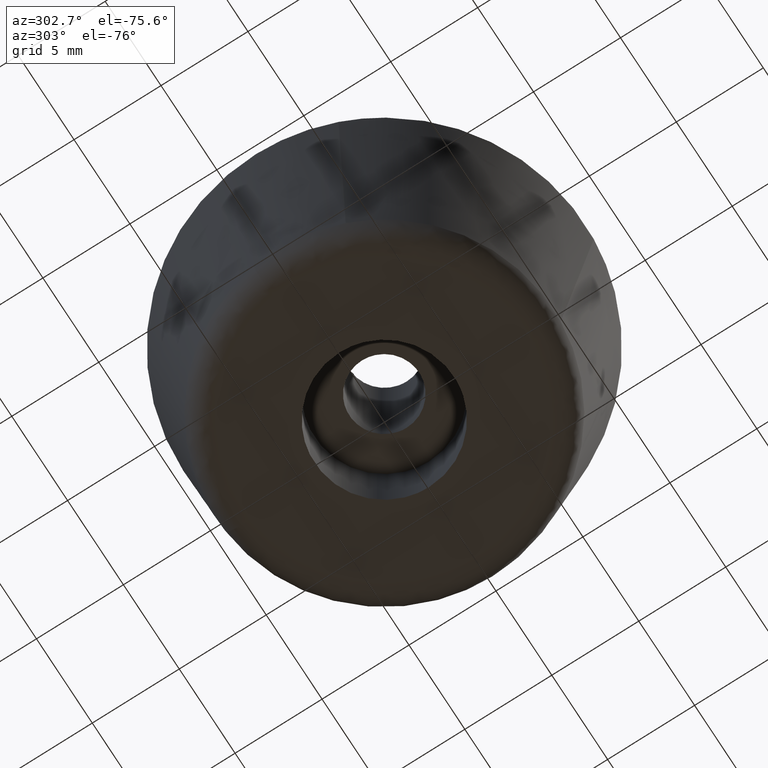
[diagram: clean part render]
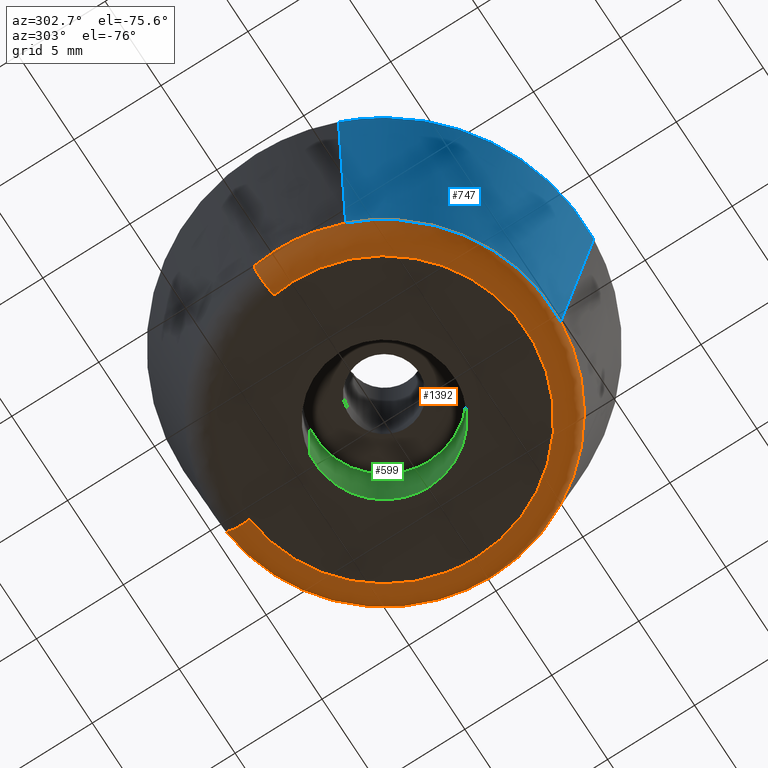
[diagram: same view with three faces highlighted in distinct colors, each labeled with its STEP entity id]
A machine part, auxiliary view with three faces highlighted in distinct colors.
Their STEP definitions:

[orange] entity #1392 — the highlighted face is a freeform B-spline surface patch.
#697=CARTESIAN_POINT('',(0.759793210136930,-9.654128600236650,1.287866823112522));
#698=VERTEX_POINT('',#697);
#699=CARTESIAN_POINT('',(-9.004789993576404,-3.562757519199149,1.287866540098154));
#700=VERTEX_POINT('',#699);
#701=CARTESIAN_POINT('',(0.759793210136930,-9.654128600236650,1.287866823112521));
#702=CARTESIAN_POINT('',(0.380483050224742,-9.683980834807507,1.287866815587023));
#703=CARTESIAN_POINT('',(-1.873867E-009,-9.683980837356685,1.287866807648506));
#704=CARTESIAN_POINT('',(-6.582919648230187,-9.683980881461247,1.287866670300424));
#705=CARTESIAN_POINT('',(-9.004789993576404,-3.562757519199149,1.287866540098154));
#713=(BOUNDED_CURVE()B_SPLINE_CURVE(2,(#701,#702,#703,#704,#705),.UNSPECIFIED.,.F.,.U.)B_SPLINE_CURVE_WITH_KNOTS((3,2,3),(0.736331356903035,0.750000000000000,0.937532585886109),.UNSPECIFIED.)CURVE()GEOMETRIC_REPRESENTATION_ITEM()RATIONAL_B_SPLINE_CURVE((0.969723473603602,0.983986188506071,1.0,0.780291909149630,0.890203229637420))REPRESENTATION_ITEM(''));
#714=EDGE_CURVE('',#698,#700,#713,.T.);
#774=CARTESIAN_POINT('',(-9.683980999999999,0.0,1.287868000000090));
#775=VERTEX_POINT('',#774);
#776=CARTESIAN_POINT('',(-9.004789993576404,-3.562757519199149,1.287866540098154));
#777=CARTESIAN_POINT('',(-9.683980903034806,-1.846117960535168,1.287867270049122));
#778=CARTESIAN_POINT('',(-9.683980999999999,0.0,1.287868000000090));
#786=(BOUNDED_CURVE()B_SPLINE_CURVE(2,(#776,#777,#778),.UNSPECIFIED.,.F.,.U.)B_SPLINE_CURVE_WITH_KNOTS((3,3),(0.937532585886109,1.0),.UNSPECIFIED.)CURVE()GEOMETRIC_REPRESENTATION_ITEM()RATIONAL_B_SPLINE_CURVE((0.890203229637420,0.926814872036918,1.0))REPRESENTATION_ITEM(''));
#787=EDGE_CURVE('',#700,#775,#786,.T.);
#836=CARTESIAN_POINT('',(9.683980999999999,0.0,1.287868000000090));
#837=VERTEX_POINT('',#836);
#838=CARTESIAN_POINT('',(9.683980999999999,0.0,1.287868000000090));
#839=CARTESIAN_POINT('',(9.683980993404466,-8.951782821511831,1.287867411556306));
#840=CARTESIAN_POINT('',(0.759793210136930,-9.654128600236650,1.287866823112521));
#848=(BOUNDED_CURVE()B_SPLINE_CURVE(2,(#838,#839,#840),.UNSPECIFIED.,.F.,.U.)B_SPLINE_CURVE_WITH_KNOTS((3,3),(0.500000000000000,0.736331356903035),.UNSPECIFIED.)CURVE()GEOMETRIC_REPRESENTATION_ITEM()RATIONAL_B_SPLINE_CURVE((1.0,0.723120592680477,0.969723473603602))REPRESENTATION_ITEM(''));
#849=EDGE_CURVE('',#837,#698,#848,.T.);
#851=CARTESIAN_POINT('',(0.783608279688495,9.652224928600838,1.287867999977965));
#852=VERTEX_POINT('',#851);
#853=CARTESIAN_POINT('',(0.783608279688495,9.652224928600838,1.287867999977965));
#854=CARTESIAN_POINT('',(9.683980999999998,8.929655178356631,1.287868000000090));
#855=CARTESIAN_POINT('',(9.683980999999999,0.0,1.287868000000090));
#863=(BOUNDED_CURVE()B_SPLINE_CURVE(2,(#853,#854,#855),.UNSPECIFIED.,.F.,.U.)B_SPLINE_CURVE_WITH_KNOTS((3,3),(0.264091366876306,0.500000000000000),.UNSPECIFIED.)CURVE()GEOMETRIC_REPRESENTATION_ITEM()RATIONAL_B_SPLINE_CURVE((0.968842955716470,0.723615844394078,1.0))REPRESENTATION_ITEM(''));
#864=EDGE_CURVE('',#852,#837,#863,.T.);
#866=CARTESIAN_POINT('',(-9.591609627675894,1.334358556978351,1.287867999980285));
#867=VERTEX_POINT('',#866);
#883=CARTESIAN_POINT('',(-9.683980999999999,0.0,1.287868000000090));
#884=CARTESIAN_POINT('',(-9.683980999999999,0.670376496503082,1.287868000000090));
#885=CARTESIAN_POINT('',(-9.591609627675894,1.334358556978351,1.287867999980285));
#893=(BOUNDED_CURVE()B_SPLINE_CURVE(2,(#883,#884,#885),.UNSPECIFIED.,.F.,.U.)B_SPLINE_CURVE_WITH_KNOTS((3,3),(0.0,0.023792609107155),.UNSPECIFIED.)CURVE()GEOMETRIC_REPRESENTATION_ITEM()RATIONAL_B_SPLINE_CURVE((1.0,0.972125224538541,0.949556158169115))REPRESENTATION_ITEM(''));
#894=EDGE_CURVE('',#775,#867,#893,.T.);
#1275=CARTESIAN_POINT('',(0.784465643835940,9.662779041621359,1.384066862054165));
#1276=CARTESIAN_POINT('',(1.061009961736563,9.640327993588837,1.384066862054166));
#1277=CARTESIAN_POINT('',(1.335817601794711,9.602097504623213,1.384066862054165));
#1278=CARTESIAN_POINT('',(10.937915106417925,8.266279902828503,1.384066862054165));
#1279=CARTESIAN_POINT('',(9.602097504623213,-1.335817601794711,1.384066862054165));
#1280=CARTESIAN_POINT('',(8.266279902828503,-10.937915106417925,1.384066862054165));
#1281=CARTESIAN_POINT('',(-1.335817601794712,-9.602097504623213,1.384066862054165));
#1282=CARTESIAN_POINT('',(-10.937915106417925,-8.266279902828503,1.384066862054165));
#1283=CARTESIAN_POINT('',(-9.602097504623213,1.335817601794712,1.384066862054165));
#1284=CARTESIAN_POINT('',(0.775202135078258,9.548674314436743,-0.092702833200218));
#1285=CARTESIAN_POINT('',(1.048480827860829,9.526488383789161,-0.092702833200218));
#1286=CARTESIAN_POINT('',(1.320043350684896,9.488709346677579,-0.092702833200218));
#1287=CARTESIAN_POINT('',(10.808752697362474,8.168665995992688,-0.092702833200218));
#1288=CARTESIAN_POINT('',(9.488709346677579,-1.320043350684895,-0.092702833200218));
#1289=CARTESIAN_POINT('',(8.168665995992683,-10.808752697362479,-0.092702833200218));
#1290=CARTESIAN_POINT('',(-1.320043350684897,-9.488709346677579,-0.092702833200218));
#1291=CARTESIAN_POINT('',(-10.808752697362477,-8.168665995992685,-0.092702833200218));
#1292=CARTESIAN_POINT('',(-9.488709346677579,1.320043350684896,-0.092702833200218));
#1293=CARTESIAN_POINT('',(0.655597493660669,8.075425318191062,0.003143705571721));
#1294=CARTESIAN_POINT('',(0.886712473808434,8.056662417692062,0.003143705571721));
#1295=CARTESIAN_POINT('',(1.116376068991456,8.024712245056426,0.003143705571721));
#1296=CARTESIAN_POINT('',(9.141088314047879,6.908336176064969,0.003143705571721));
#1297=CARTESIAN_POINT('',(8.024712245056426,-1.116376068991454,0.003143705571721));
#1298=CARTESIAN_POINT('',(6.908336176064967,-9.141088314047879,0.003143705571721));
#1299=CARTESIAN_POINT('',(-1.116376068991457,-8.024712245056426,0.003143705571721));
#1300=CARTESIAN_POINT('',(-9.141088314047879,-6.908336176064967,0.003143705571721));
#1301=CARTESIAN_POINT('',(-8.024712245056426,1.116376068991456,0.003143705571721));
#1309=(BOUNDED_SURFACE()B_SPLINE_SURFACE(2,2,((#1275,#1284,#1293),(#1276,#1285,#1294),(#1277,#1286,#1295),(#1278,#1287,#1296),(#1279,#1288,#1297),(#1280,#1289,#1298),(#1281,#1290,#1299),(#1282,#1291,#1300),(#1283,#1292,#1301)),.UNSPECIFIED.,.F.,.F.,.U.)B_SPLINE_SURFACE_WITH_KNOTS((3,2,2,2,3),(3,3),(0.0,0.642498959355928,16.704988261637642,32.767477563919350,48.829966866201062),(0.0,2.463144151586105),.UNSPECIFIED.)GEOMETRIC_REPRESENTATION_ITEM()RATIONAL_B_SPLINE_SURFACE(((0.895517969779322,0.636073489703078,0.892333844008644),(0.905392392377359,0.643087149565520,0.902173156866257),(0.916125459528631,0.650710692262055,0.912868061259361),(0.647798524850337,0.460121943089092,0.645495196445111),(0.916125459528631,0.650710692262055,0.912868061259361),(0.647798524850337,0.460121943089092,0.645495196445111),(0.916125459528631,0.650710692262055,0.912868061259361),(0.647798524850337,0.460121943089092,0.645495196445111),(0.916125459528631,0.650710692262055,0.912868061259361)))REPRESENTATION_ITEM('')SURFACE());
#1310=CARTESIAN_POINT('',(0.663451194216494,8.172170102542422,2.551879E-016));
#1311=VERTEX_POINT('',#1310);
#1312=CARTESIAN_POINT('',(8.199056754600250,0.0,0.0));
#1313=VERTEX_POINT('',#1312);
#1314=CARTESIAN_POINT('',(0.663451194216494,8.172170102542422,2.551879E-016));
#1315=CARTESIAN_POINT('',(8.199056754600250,7.560397898932868,0.0));
#1316=CARTESIAN_POINT('',(8.199056754600250,0.0,0.0));
#1324=(BOUNDED_CURVE()B_SPLINE_CURVE(2,(#1314,#1315,#1316),.UNSPECIFIED.,.F.,.U.)B_SPLINE_CURVE_WITH_KNOTS((3,3),(0.264091366877822,0.500000000000000),.UNSPECIFIED.)CURVE()GEOMETRIC_REPRESENTATION_ITEM()RATIONAL_B_SPLINE_CURVE((0.968842955713318,0.723615844395854,1.0))REPRESENTATION_ITEM(''));
#1325=EDGE_CURVE('',#1311,#1313,#1324,.T.);
#1326=ORIENTED_EDGE('',*,*,#1325,.F.);
#1327=CARTESIAN_POINT('',(0.783608279688495,9.652224928600838,1.287867999977965));
#1328=CARTESIAN_POINT('',(0.768720897834433,9.468847133936658,7.234863E-010));
#1329=CARTESIAN_POINT('',(0.663451194216494,8.172170102542422,2.551879E-016));
#1337=(BOUNDED_CURVE()B_SPLINE_CURVE(2,(#1327,#1328,#1329),.UNSPECIFIED.,.F.,.U.)B_SPLINE_CURVE_WITH_KNOTS((3,3),(-1.712961397488156,-0.296657196544669),.UNSPECIFIED.)CURVE()GEOMETRIC_REPRESENTATION_ITEM()RATIONAL_B_SPLINE_CURVE((0.873017091049475,0.658429777458139,0.870122084024829))REPRESENTATION_ITEM(''));
#1338=EDGE_CURVE('',#852,#1311,#1337,.T.);
#1339=ORIENTED_EDGE('',*,*,#1338,.F.);
#1340=ORIENTED_EDGE('',*,*,#864,.T.);
#1341=ORIENTED_EDGE('',*,*,#849,.T.);
#1342=ORIENTED_EDGE('',*,*,#714,.T.);
#1343=ORIENTED_EDGE('',*,*,#787,.T.);
#1344=ORIENTED_EDGE('',*,*,#894,.T.);
#1345=CARTESIAN_POINT('',(-8.120849442830764,1.129750413623381,2.494476E-016));
#1346=VERTEX_POINT('',#1345);
#1347=CARTESIAN_POINT('',(-9.591609627675894,1.334358556978351,1.287867999980285));
#1348=CARTESIAN_POINT('',(-9.409383432779494,1.309007746014928,5.342903E-010));
#1349=CARTESIAN_POINT('',(-8.120849442830764,1.129750413623381,2.494476E-016));
#1357=(BOUNDED_CURVE()B_SPLINE_CURVE(2,(#1347,#1348,#1349),.UNSPECIFIED.,.F.,.U.)B_SPLINE_CURVE_WITH_KNOTS((3,3),(-1.712961397491537,-0.296657196387747),.UNSPECIFIED.)CURVE()GEOMETRIC_REPRESENTATION_ITEM()RATIONAL_B_SPLINE_CURVE((0.893106813627465,0.673581452814167,0.890145187234654))REPRESENTATION_ITEM(''));
#1358=EDGE_CURVE('',#867,#1346,#1357,.T.);
#1359=ORIENTED_EDGE('',*,*,#1358,.T.);
#1360=CARTESIAN_POINT('',(-8.199056754600250,0.0,0.0));
#1361=VERTEX_POINT('',#1360);
#1362=CARTESIAN_POINT('',(-8.199056754600250,0.0,0.0));
#1363=CARTESIAN_POINT('',(-8.199056754600250,0.567582169149916,0.0));
#1364=CARTESIAN_POINT('',(-8.120849442830764,1.129750413623380,2.494476E-016));
#1372=(BOUNDED_CURVE()B_SPLINE_CURVE(2,(#1362,#1363,#1364),.UNSPECIFIED.,.F.,.U.)B_SPLINE_CURVE_WITH_KNOTS((3,3),(0.0,0.023792609108029),.UNSPECIFIED.)CURVE()GEOMETRIC_REPRESENTATION_ITEM()RATIONAL_B_SPLINE_CURVE((1.0,0.972125224537517,0.949556158167457))REPRESENTATION_ITEM(''));
#1373=EDGE_CURVE('',#1361,#1346,#1372,.T.);
#1374=ORIENTED_EDGE('',*,*,#1373,.F.);
#1375=CARTESIAN_POINT('',(8.199056754600250,0.0,0.0));
#1376=CARTESIAN_POINT('',(8.199056754600250,-8.199056754600250,0.0));
#1377=CARTESIAN_POINT('',(0.0,-8.199056754600250,0.0));
#1378=CARTESIAN_POINT('',(-8.199056754600250,-8.199056754600250,0.0));
#1379=CARTESIAN_POINT('',(-8.199056754600250,0.0,0.0));
#1387=(BOUNDED_CURVE()B_SPLINE_CURVE(2,(#1375,#1376,#1377,#1378,#1379),.UNSPECIFIED.,.F.,.U.)B_SPLINE_CURVE_WITH_KNOTS((3,2,3),(0.500000000000000,0.750000000000000,1.0),.UNSPECIFIED.)CURVE()GEOMETRIC_REPRESENTATION_ITEM()RATIONAL_B_SPLINE_CURVE((1.0,0.707106781186548,1.0,0.707106781186548,1.0))REPRESENTATION_ITEM(''));
#1388=EDGE_CURVE('',#1313,#1361,#1387,.T.);
#1389=ORIENTED_EDGE('',*,*,#1388,.F.);
#1390=EDGE_LOOP('',(#1326,#1339,#1340,#1341,#1342,#1343,#1344,#1359,#1374,#1389));
#1391=FACE_OUTER_BOUND('',#1390,.T.);
#1392=ADVANCED_FACE('',(#1391),#1309,.T.);

[blue] entity #747 — the highlighted face is a freeform B-spline surface patch.
#683=CARTESIAN_POINT('',(-8.962573087336143,-3.546056710066132,0.970064699977414));
#684=CARTESIAN_POINT('',(-6.342760130780460,-10.167570977344328,0.970064699977414));
#685=CARTESIAN_POINT('',(0.756234312091270,-9.608867997951839,0.970064699977414));
#686=CARTESIAN_POINT('',(-10.736712520921008,-4.247997880503651,14.325748382500571));
#687=CARTESIAN_POINT('',(-7.598308147642674,-12.180239486588372,14.325748382500569));
#688=CARTESIAN_POINT('',(0.905930733089698,-11.510941371430450,14.325748382500571));
#696=(BOUNDED_SURFACE()B_SPLINE_SURFACE(2,1,((#683,#686),(#684,#687),(#685,#688)),.UNSPECIFIED.,.F.,.F.,.U.)B_SPLINE_SURFACE_WITH_KNOTS((3,3),(2,2),(0.0,15.200421907008570),(0.0,13.491277877361030),.UNSPECIFIED.)GEOMETRIC_REPRESENTATION_ITEM()RATIONAL_B_SPLINE_SURFACE(((0.906274169979695,0.906274169979695),(0.765685424949238,0.765685424949238),(1.0,1.0)))REPRESENTATION_ITEM('')SURFACE());
#697=CARTESIAN_POINT('',(0.759793210136930,-9.654128600236650,1.287866823112522));
#698=VERTEX_POINT('',#697);
#699=CARTESIAN_POINT('',(-9.004789993576404,-3.562757519199149,1.287866540098154));
#700=VERTEX_POINT('',#699);
#701=CARTESIAN_POINT('',(0.759793210136930,-9.654128600236650,1.287866823112521));
#702=CARTESIAN_POINT('',(0.380483050224742,-9.683980834807507,1.287866815587023));
#703=CARTESIAN_POINT('',(-1.873867E-009,-9.683980837356685,1.287866807648506));
#704=CARTESIAN_POINT('',(-6.582919648230187,-9.683980881461247,1.287866670300424));
#705=CARTESIAN_POINT('',(-9.004789993576404,-3.562757519199149,1.287866540098154));
#713=(BOUNDED_CURVE()B_SPLINE_CURVE(2,(#701,#702,#703,#704,#705),.UNSPECIFIED.,.F.,.U.)B_SPLINE_CURVE_WITH_KNOTS((3,2,3),(0.736331356903035,0.750000000000000,0.937532585886109),.UNSPECIFIED.)CURVE()GEOMETRIC_REPRESENTATION_ITEM()RATIONAL_B_SPLINE_CURVE((0.969723473603602,0.983986188506071,1.0,0.780291909149630,0.890203229637420))REPRESENTATION_ITEM(''));
#714=EDGE_CURVE('',#698,#700,#713,.T.);
#715=ORIENTED_EDGE('',*,*,#714,.F.);
#716=CARTESIAN_POINT('',(0.902272979649977,-11.464549499198901,13.999997488957700));
#717=VERTEX_POINT('',#716);
#718=CARTESIAN_POINT('',(0.759793210136930,-9.654128600236650,1.287866823112522));
#719=CARTESIAN_POINT('',(0.902272979649977,-11.464549499198901,13.999997488957700));
#720=QUASI_UNIFORM_CURVE('',1,(#718,#719),.UNSPECIFIED.,.F.,.U.);
#721=EDGE_CURVE('',#698,#717,#720,.T.);
#722=ORIENTED_EDGE('',*,*,#721,.T.);
#723=CARTESIAN_POINT('',(-10.693441957360051,-4.230873441851633,13.999997253690299));
#724=VERTEX_POINT('',#723);
#725=CARTESIAN_POINT('',(0.902272979649977,-11.464549499198895,13.999997488957700));
#726=CARTESIAN_POINT('',(0.451832901056553,-11.499999648054686,13.999997482701840));
#727=CARTESIAN_POINT('',(-6.673436E-009,-11.499999654037060,13.999997476102640));
#728=CARTESIAN_POINT('',(-7.817403346116985,-11.499999757541397,13.999997361926360));
#729=CARTESIAN_POINT('',(-10.693441957360053,-4.230873441851633,13.999997253690308));
#737=(BOUNDED_CURVE()B_SPLINE_CURVE(2,(#725,#726,#727,#728,#729),.UNSPECIFIED.,.F.,.U.)B_SPLINE_CURVE_WITH_KNOTS((3,2,3),(0.736331399216205,0.750000000000000,0.937532605536812),.UNSPECIFIED.)CURVE()GEOMETRIC_REPRESENTATION_ITEM()RATIONAL_B_SPLINE_CURVE((0.969723561908021,0.983986238079033,1.0,0.780291886127398,0.890203252671658))REPRESENTATION_ITEM(''));
#738=EDGE_CURVE('',#717,#724,#737,.T.);
#739=ORIENTED_EDGE('',*,*,#738,.T.);
#740=CARTESIAN_POINT('',(-9.004789993576404,-3.562757519199149,1.287866540098154));
#741=CARTESIAN_POINT('',(-10.693441957360051,-4.230873441851633,13.999997253690299));
#742=QUASI_UNIFORM_CURVE('',1,(#740,#741),.UNSPECIFIED.,.F.,.U.);
#743=EDGE_CURVE('',#700,#724,#742,.T.);
#744=ORIENTED_EDGE('',*,*,#743,.F.);
#745=EDGE_LOOP('',(#715,#722,#739,#744));
#746=FACE_OUTER_BOUND('',#745,.T.);
#747=ADVANCED_FACE('',(#746),#696,.T.);

[green] entity #599 — the highlighted face is a freeform B-spline surface patch.
#497=CARTESIAN_POINT('',(-0.472136938627034,3.972038105454666,5.125000000000002));
#498=CARTESIAN_POINT('',(-0.358458914551911,3.985550461794422,5.125000000000001));
#499=CARTESIAN_POINT('',(-0.244194158139428,3.992539193687467,5.125000000000001));
#500=CARTESIAN_POINT('',(3.748345035548039,4.236733351826894,5.125000000000001));
#501=CARTESIAN_POINT('',(3.992539193687467,0.244194158139428,5.125000000000001));
#502=CARTESIAN_POINT('',(4.236733351826894,-3.748345035548039,5.125000000000001));
#503=CARTESIAN_POINT('',(0.244194158139428,-3.992539193687467,5.125000000000001));
#504=CARTESIAN_POINT('',(-0.472136938627034,3.972038105454666,-0.128125000000000));
#505=CARTESIAN_POINT('',(-0.358458914551911,3.985550461794422,-0.128125000000000));
#506=CARTESIAN_POINT('',(-0.244194158139428,3.992539193687467,-0.128125000000000));
#507=CARTESIAN_POINT('',(3.748345035548039,4.236733351826894,-0.128125000000000));
#508=CARTESIAN_POINT('',(3.992539193687467,0.244194158139428,-0.128125000000000));
#509=CARTESIAN_POINT('',(4.236733351826894,-3.748345035548039,-0.128125000000000));
#510=CARTESIAN_POINT('',(0.244194158139428,-3.992539193687467,-0.128125000000000));
#518=(BOUNDED_SURFACE()B_SPLINE_SURFACE(2,1,((#497,#504),(#498,#505),(#499,#506),(#500,#507),(#501,#508),(#502,#509),(#503,#510)),.UNSPECIFIED.,.F.,.F.,.U.)B_SPLINE_SURFACE_WITH_KNOTS((3,2,2,3),(2,2),(0.0,0.265096679918781,6.892513677888299,13.519930675857820),(0.0,5.253125000000002),.UNSPECIFIED.)GEOMETRIC_REPRESENTATION_ITEM()RATIONAL_B_SPLINE_SURFACE(((0.977505800795127,0.977505800795127),(0.988284271247462,0.988284271247462),(1.0,1.0),(0.707106781186548,0.707106781186548),(1.0,1.0),(0.707106781186548,0.707106781186548),(1.0,1.0)))REPRESENTATION_ITEM('')SURFACE());
#519=CARTESIAN_POINT('',(-0.472136938642817,3.972038105452789,-1.419714E-016));
#520=VERTEX_POINT('',#519);
#521=CARTESIAN_POINT('',(4.0,0.0,0.0));
#522=VERTEX_POINT('',#521);
#523=CARTESIAN_POINT('',(-0.472136938642817,3.972038105452789,-1.419714E-016));
#524=CARTESIAN_POINT('',(-0.236896478623590,4.0,0.0));
#525=CARTESIAN_POINT('',(0.0,4.0,0.0));
#526=CARTESIAN_POINT('',(4.000000000000000,4.000000000000000,0.0));
#527=CARTESIAN_POINT('',(4.0,0.0,0.0));
#535=(BOUNDED_CURVE()B_SPLINE_CURVE(2,(#523,#524,#525,#526,#527),.UNSPECIFIED.,.F.,.U.)B_SPLINE_CURVE_WITH_KNOTS((3,2,3),(0.229562473514301,0.250000000000000,0.500000000000000),.UNSPECIFIED.)CURVE()GEOMETRIC_REPRESENTATION_ITEM()RATIONAL_B_SPLINE_CURVE((0.956026754185253,0.976055948332074,1.0,0.707106781186548,1.0))REPRESENTATION_ITEM(''));
#536=EDGE_CURVE('',#520,#522,#535,.T.);
#537=ORIENTED_EDGE('',*,*,#536,.T.);
#538=CARTESIAN_POINT('',(0.244194158158791,-3.992539193686283,-1.318390E-016));
#539=VERTEX_POINT('',#538);
#540=CARTESIAN_POINT('',(4.0,0.0,0.0));
#541=CARTESIAN_POINT('',(4.0,-3.762824267586224,0.0));
#542=CARTESIAN_POINT('',(0.244194158158791,-3.992539193686283,-1.318390E-016));
#550=(BOUNDED_CURVE()B_SPLINE_CURVE(2,(#540,#541,#542),.UNSPECIFIED.,.F.,.U.)B_SPLINE_CURVE_WITH_KNOTS((3,3),(0.500000000000000,0.739332962240295),.UNSPECIFIED.)CURVE()GEOMETRIC_REPRESENTATION_ITEM()RATIONAL_B_SPLINE_CURVE((1.0,0.719603993285126,0.976072041669616))REPRESENTATION_ITEM(''));
#551=EDGE_CURVE('',#522,#539,#550,.T.);
#552=ORIENTED_EDGE('',*,*,#551,.T.);
#553=CARTESIAN_POINT('',(0.244194158158791,-3.992539193686283,5.0));
#554=VERTEX_POINT('',#553);
#555=CARTESIAN_POINT('',(0.244194158158791,-3.992539193686283,5.0));
#556=CARTESIAN_POINT('',(0.244194158158791,-3.992539193686283,-1.318390E-016));
#557=QUASI_UNIFORM_CURVE('',1,(#555,#556),.UNSPECIFIED.,.F.,.U.);
#558=EDGE_CURVE('',#554,#539,#557,.T.);
#559=ORIENTED_EDGE('',*,*,#558,.F.);
#560=CARTESIAN_POINT('',(4.0,0.0,5.0));
#561=VERTEX_POINT('',#560);
#562=CARTESIAN_POINT('',(4.0,0.0,5.0));
#563=CARTESIAN_POINT('',(4.0,-3.762824267586224,5.0));
#564=CARTESIAN_POINT('',(0.244194158158791,-3.992539193686283,5.0));
#572=(BOUNDED_CURVE()B_SPLINE_CURVE(2,(#562,#563,#564),.UNSPECIFIED.,.F.,.U.)B_SPLINE_CURVE_WITH_KNOTS((3,3),(0.500000000000000,0.739332962240295),.UNSPECIFIED.)CURVE()GEOMETRIC_REPRESENTATION_ITEM()RATIONAL_B_SPLINE_CURVE((1.0,0.719603993285126,0.976072041669616))REPRESENTATION_ITEM(''));
#573=EDGE_CURVE('',#561,#554,#572,.T.);
#574=ORIENTED_EDGE('',*,*,#573,.F.);
#575=CARTESIAN_POINT('',(-0.472136938642816,3.972038105452789,5.0));
#576=VERTEX_POINT('',#575);
#577=CARTESIAN_POINT('',(-0.472136938642816,3.972038105452789,5.0));
#578=CARTESIAN_POINT('',(-0.236896478623590,4.0,4.999999999999999));
#579=CARTESIAN_POINT('',(0.0,4.0,5.0));
#580=CARTESIAN_POINT('',(4.000000000000000,4.000000000000000,5.000000000000001));
#581=CARTESIAN_POINT('',(4.0,0.0,5.0));
#589=(BOUNDED_CURVE()B_SPLINE_CURVE(2,(#577,#578,#579,#580,#581),.UNSPECIFIED.,.F.,.U.)B_SPLINE_CURVE_WITH_KNOTS((3,2,3),(0.229562473514301,0.250000000000000,0.500000000000000),.UNSPECIFIED.)CURVE()GEOMETRIC_REPRESENTATION_ITEM()RATIONAL_B_SPLINE_CURVE((0.956026754185253,0.976055948332074,1.0,0.707106781186548,1.0))REPRESENTATION_ITEM(''));
#590=EDGE_CURVE('',#576,#561,#589,.T.);
#591=ORIENTED_EDGE('',*,*,#590,.F.);
#592=CARTESIAN_POINT('',(-0.472136938642816,3.972038105452789,5.0));
#593=CARTESIAN_POINT('',(-0.472136938642817,3.972038105452789,-1.419714E-016));
#594=QUASI_UNIFORM_CURVE('',1,(#592,#593),.UNSPECIFIED.,.F.,.U.);
#595=EDGE_CURVE('',#576,#520,#594,.T.);
#596=ORIENTED_EDGE('',*,*,#595,.T.);
#597=EDGE_LOOP('',(#537,#552,#559,#574,#591,#596));
#598=FACE_OUTER_BOUND('',#597,.T.);
#599=ADVANCED_FACE('',(#598),#518,.F.);